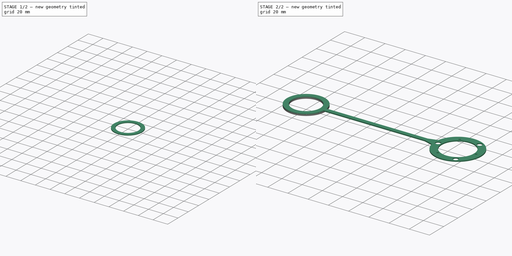
[diagram: build sequence overview — one tinted view per stage of 2, left to right]
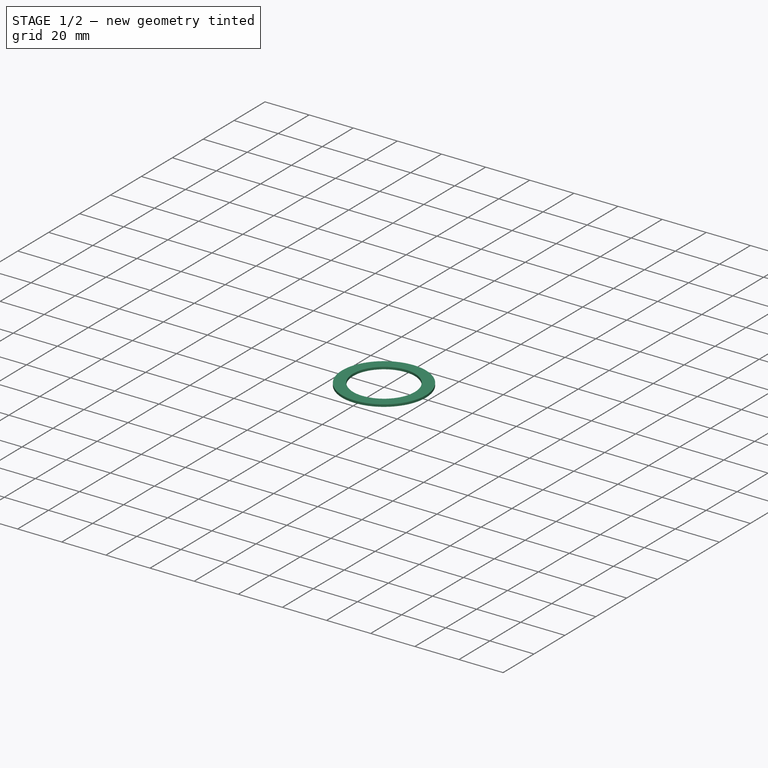
[diagram: stage 1 of 2 — iso view after this stage's code; geometry added in this stage tinted green]
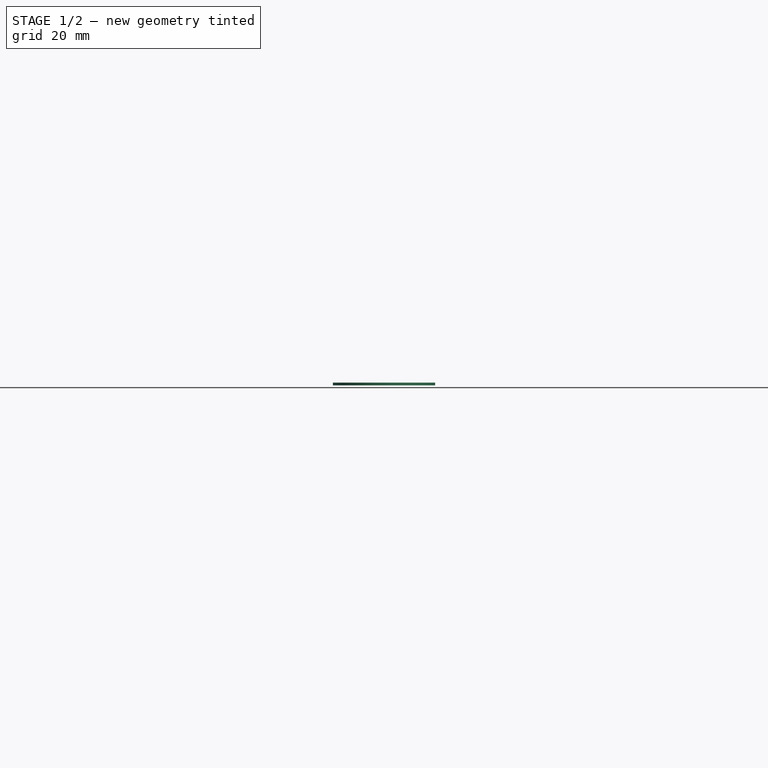
[diagram: stage 1 of 2 — front view after this stage's code; geometry added in this stage tinted green]
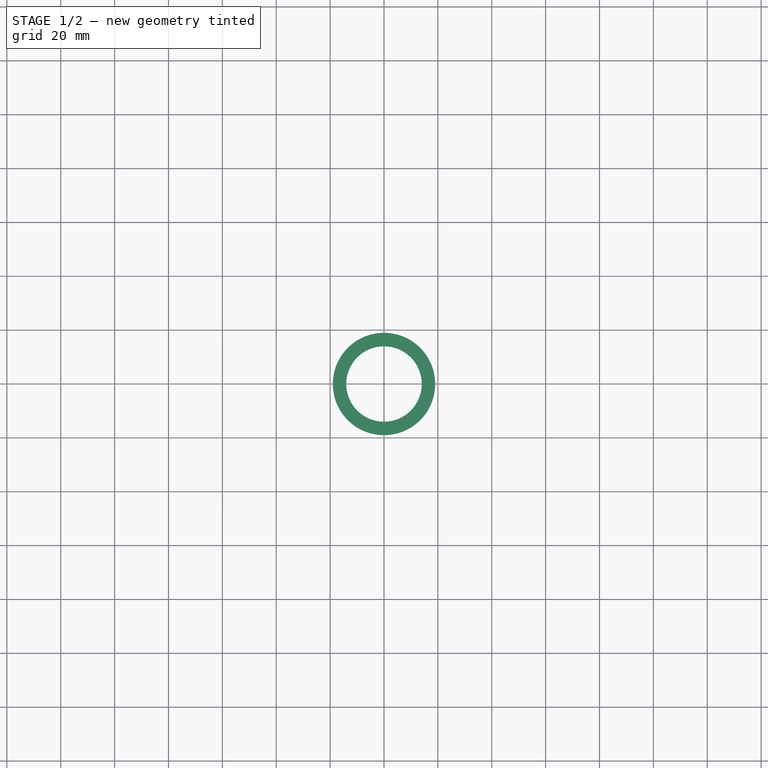
[diagram: stage 1 of 2 — top view after this stage's code; geometry added in this stage tinted green]
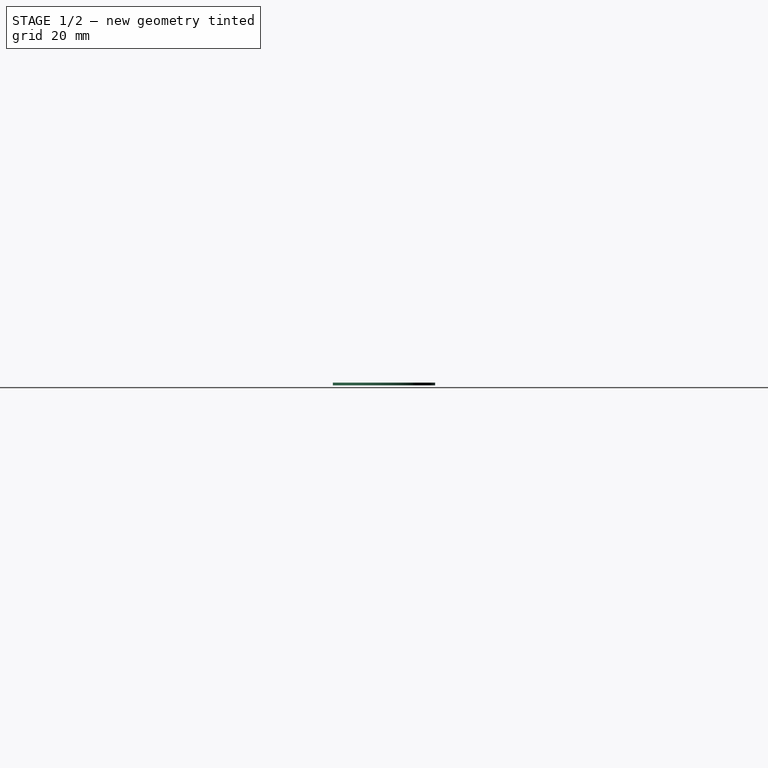
[diagram: stage 1 of 2 — right view after this stage's code; geometry added in this stage tinted green]
FCSTD DOCUMENT  (FreeCAD 0.19R24276 (Git))
Label: Metki_2
License: All rights reserved
LicenseURL: http://en.wikipedia.org/wiki/All_rights_reserved
objects: Sketcher::SketchObject×2, PartDesign::Pad×2, PartDesign::Body×1
note: 7 computed .brp shape members not serialized (recipe doc carries the construction recipe); baked Part::Feature solids carry a one-line shape summary decoded from their .brp

FEATURE [Sketcher::SketchObject] Sketch
  FullyConstrained = true
  MapMode = 5
  Support = -> [XY_Plane]
  sketch-geometry (2):
    g0: Circle CenterX=0 CenterY=0 CenterZ=0 NormalX=0 NormalY=0 NormalZ=1 AngleXU=0 Radius=19
    g1: Circle CenterX=0 CenterY=0 CenterZ=0 NormalX=0 NormalY=0 NormalZ=1 AngleXU=0 Radius=14
  constraints (4):
    c: Coincident(g0,g-1)
    c: Diameter(g0) = 38
    c: Coincident(g1,g0)
    c: Diameter(g1) = 28
FEATURE [PartDesign::Pad] Pad
  Direction = (1,1,1)
  Length = 1
  Length2 = 100
  Profile = -> Sketch
  Type = 0
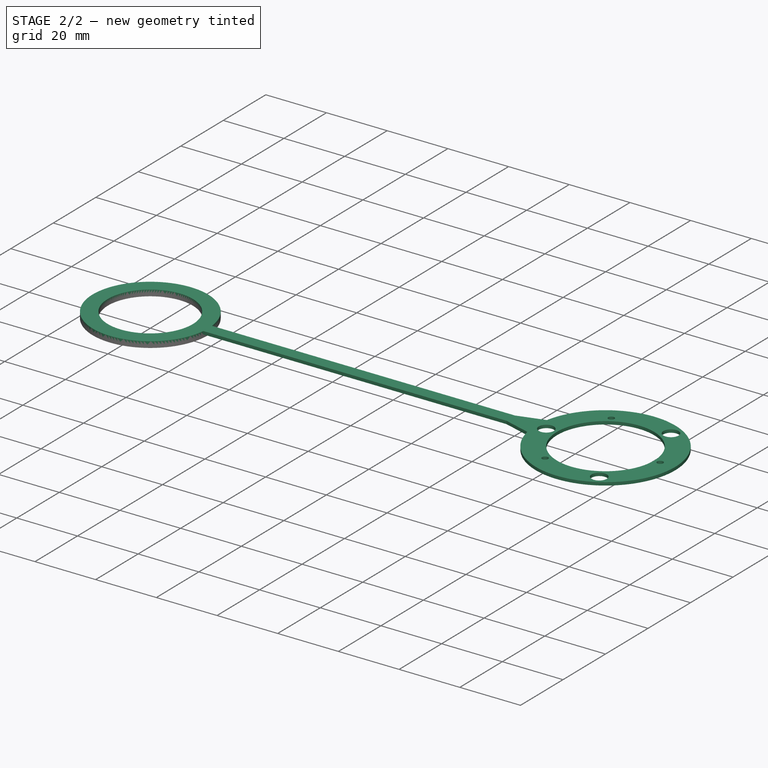
[diagram: stage 2 of 2 — iso view after this stage's code; geometry added in this stage tinted green]
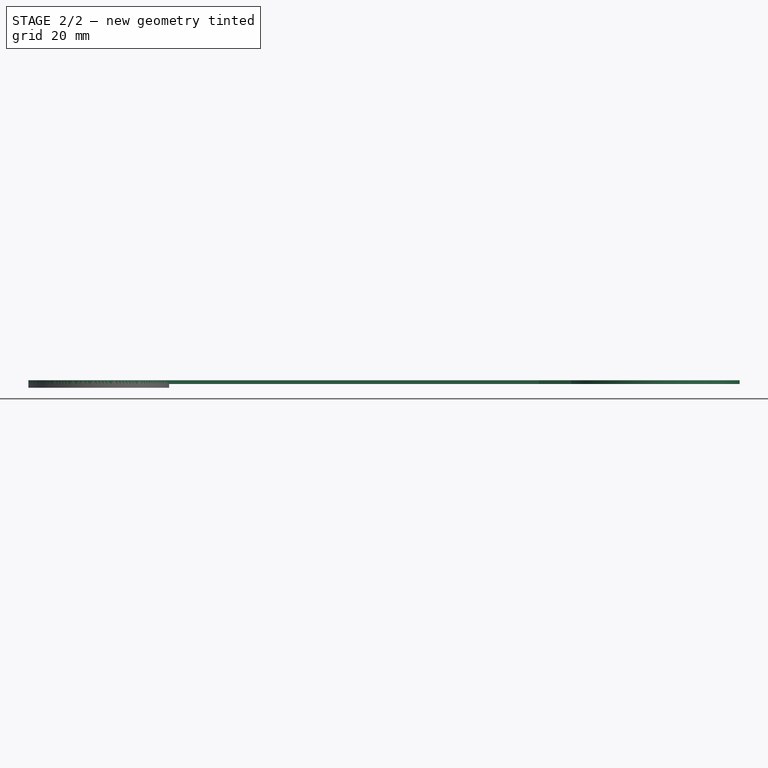
[diagram: stage 2 of 2 — front view after this stage's code; geometry added in this stage tinted green]
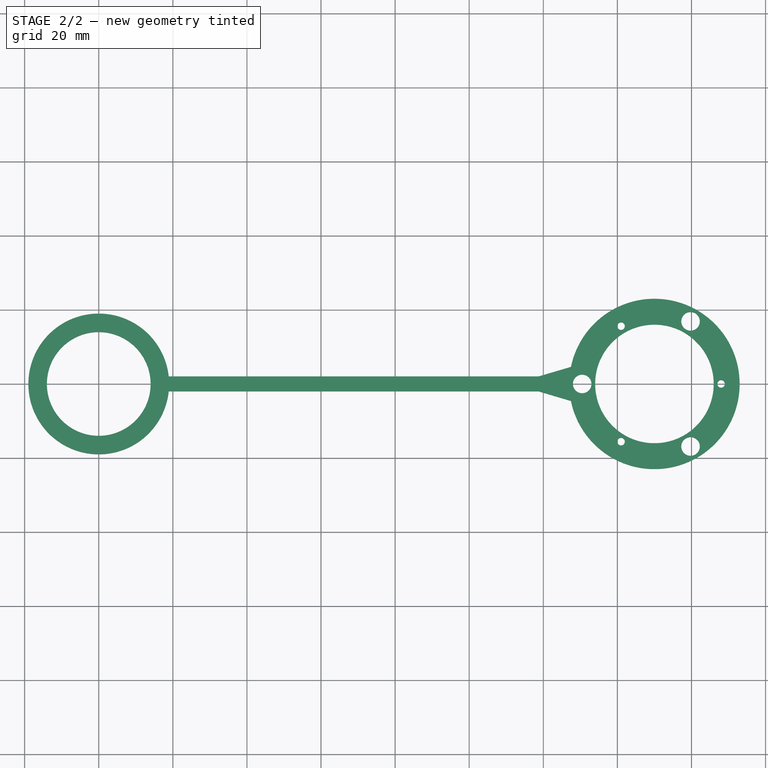
[diagram: stage 2 of 2 — top view after this stage's code; geometry added in this stage tinted green]
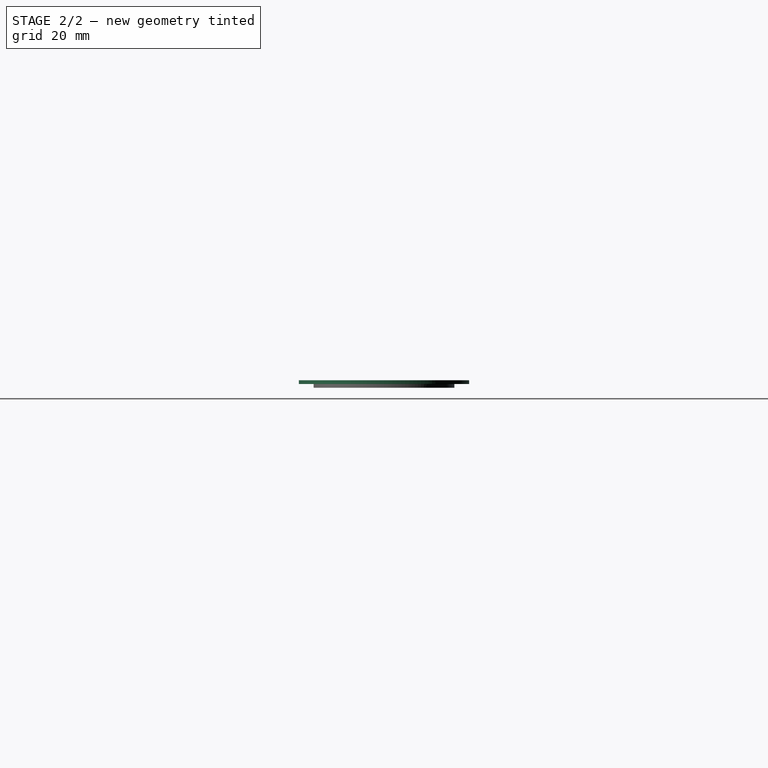
[diagram: stage 2 of 2 — right view after this stage's code; geometry added in this stage tinted green]
FEATURE [Sketcher::SketchObject] Sketch001
  FullyConstrained = false
  MapMode = 5
  Placement = pos=(0,0,1) rot=(0,0,1;0rad)
  Support = -> [Pad]
  sketch-geometry (28):
    g0: ArcOfCircle CenterX=0 CenterY=0 CenterZ=0 NormalX=0 NormalY=0 NormalZ=1 AngleXU=0 Radius=19 StartAngle=0.107906 EndAngle=6.1762
    g1: Circle CenterX=0 CenterY=0 CenterZ=0 NormalX=0 NormalY=0 NormalZ=1 AngleXU=0 Radius=14
    g2: ArcOfCircle CenterX=150 CenterY=0 CenterZ=0 NormalX=0 NormalY=0 NormalZ=1 AngleXU=0 Radius=23 StartAngle=3.34343 EndAngle=9.22295
    g3: LineSegment StartX=18.8895 StartY=2.04623 StartZ=0 EndX=118.782 EndY=2.04623 EndZ=0
    g4: LineSegment StartX=18.8914 StartY=-2.02886 StartZ=0 EndX=118.782 EndY=-2.02886 EndZ=0
    g5: LineSegment StartX=0 StartY=-2 StartZ=0 EndX=0 EndY=2 EndZ=0
    g6: Circle CenterX=141 CenterY=15.5885 CenterZ=0 NormalX=0 NormalY=0 NormalZ=1 AngleXU=0 Radius=1
    g7: Circle CenterX=168 CenterY=0 CenterZ=0 NormalX=0 NormalY=0 NormalZ=1 AngleXU=0 Radius=1
    g8: Circle CenterX=141 CenterY=-15.5885 CenterZ=0 NormalX=0 NormalY=0 NormalZ=1 AngleXU=0 Radius=1
    g9: LineSegment StartX=141 StartY=15.5885 StartZ=0 EndX=141 EndY=-15.5885 EndZ=0
    g10: LineSegment StartX=141 StartY=-15.5885 StartZ=0 EndX=168 EndY=0 EndZ=0
    g11: LineSegment StartX=168 StartY=0 StartZ=0 EndX=141 EndY=15.5885 EndZ=0
    g12: Circle CenterX=150 CenterY=0 CenterZ=0 NormalX=0 NormalY=0 NormalZ=1 AngleXU=0 Radius=18
    g13: LineSegment StartX=150 StartY=0 StartZ=0 EndX=168 EndY=0 EndZ=0
    g14: Circle CenterX=150 CenterY=0 CenterZ=0 NormalX=0 NormalY=0 NormalZ=1 AngleXU=0 Radius=16
    g15: LineSegment StartX=132 StartY=0 StartZ=0 EndX=159 EndY=-15.5885 EndZ=0
    g16: LineSegment StartX=159 StartY=-15.5885 StartZ=0 EndX=159 EndY=15.5885 EndZ=0
    g17: LineSegment StartX=159 StartY=15.5885 StartZ=0 EndX=132 EndY=0 EndZ=0
    g18: Circle CenterX=150 CenterY=0 CenterZ=0 NormalX=0 NormalY=0 NormalZ=1 AngleXU=0 Radius=18
    g19: Circle CenterX=159 CenterY=15.5885 CenterZ=0 NormalX=0 NormalY=0 NormalZ=1 AngleXU=0 Radius=2.5
    g20: Circle CenterX=132 CenterY=0 CenterZ=0 NormalX=0 NormalY=0 NormalZ=1 AngleXU=0 Radius=2.5
    g21: Circle CenterX=159 CenterY=-15.5885 CenterZ=0 NormalX=0 NormalY=0 NormalZ=1 AngleXU=0 Radius=2.5
    g22: LineSegment StartX=150 StartY=0 StartZ=0 EndX=132 EndY=0 EndZ=0
    g23: LineSegment StartX=127.467 StartY=4.61069 StartZ=0 EndX=132 EndY=4.61069 EndZ=0
    g24: LineSegment StartX=132 StartY=4.61069 StartZ=0 EndX=132 EndY=-4.61069 EndZ=0
    g25: LineSegment StartX=132 StartY=-4.61069 StartZ=0 EndX=127.467 EndY=-4.61069 EndZ=0
    g26: LineSegment StartX=127.467 StartY=-4.61069 StartZ=0 EndX=118.782 EndY=-2.02886 EndZ=0
    g27: LineSegment StartX=118.782 StartY=2.04623 StartZ=0 EndX=127.467 EndY=4.61069 EndZ=0
  constraints (63):
    c: Coincident(g0,g-1)
    c: Coincident(g1,g-1)
    c: Diameter(g1) = 28
    c: Diameter(g0) = 38
    c: PointOnObject(g2,g-1)
    c: Horizontal(g3)
    c: Horizontal(g4)
    c: Vertical(g5)
    c: DistanceY(g5,g5) = 4
    c: Coincident(g0,g3)
    c: Coincident(g0,g4)
    c: Coincident(g9,g10)
    c: Coincident(g10,g11)
    c: Coincident(g11,g9)
    c: Equal(g9,g10)
    c: Equal(g9,g11)
    c: PointOnObject(g9,g12)
    c: PointOnObject(g10,g12)
    c: PointOnObject(g11,g12)
    c: Coincident(g12,g2)
    c: Coincident(g13,g2)
    c: Coincident(g13,g10)
    c: Horizontal(g13)
    c: Diameter(g12) = 36
    c: Diameter(g2) = 46
    c: Coincident(g6,g9)
    c: Coincident(g7,g10)
    c: Coincident(g8,g9)
    c: Diameter(g8) = 2
    c: Equal(g8,g6)
    c: Equal(g8,g7)
    c: Coincident(g14,g2)
    c: Diameter(g14) = 32
    c: Coincident(g15,g16)
    c: Coincident(g16,g17)
    c: Coincident(g17,g15)
    c: Equal(g15,g16)
    c: Equal(g15,g17)
    c: PointOnObject(g15,g18)
    c: PointOnObject(g16,g18)
    c: PointOnObject(g17,g18)
    c: Coincident(g18,g2)
    c: PointOnObject(g17,g-1)
    c: Diameter(g18) = 36
    c: Coincident(g19,g16)
    c: Coincident(g20,g15)
    c: Coincident(g21,g15)
    c: Diameter(g20) = 5
    c: Equal(g20,g19)
    c: Equal(g20,g21)
    c: Coincident(g22,g2)
    c: Coincident(g22,g15)
    c: DistanceX(g0,g2) = 150
    c: Coincident(g23,g24)
    c: Coincident(g24,g25)
    c: Horizontal(g23)
    c: Horizontal(g25)
    c: Vertical(g24)
    c: Symmetric(g24,g23,g20)
    c: Coincident(g26,g25)
    c: Coincident(g27,g23)
    c: Coincident(g2,g23)
    c: Coincident(g2,g25)
FEATURE [PartDesign::Pad] Pad001
  BaseFeature = -> Pad
  Direction = (1,1,1)
  Length = 1
  Length2 = 100
  Profile = -> Sketch001
  Type = 0
FEATURE [PartDesign::Body] Body
  Group = -> [Sketch,Pad,Sketch001,Pad001]
  Origin = -> Origin
  Tip = -> Pad001
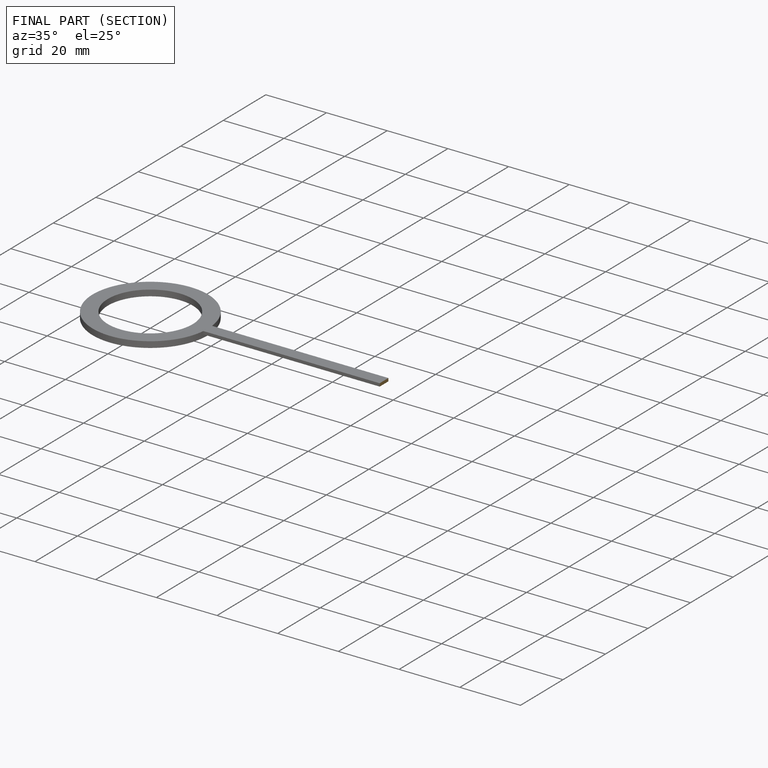
[diagram: finished part — half-section view (interior)]
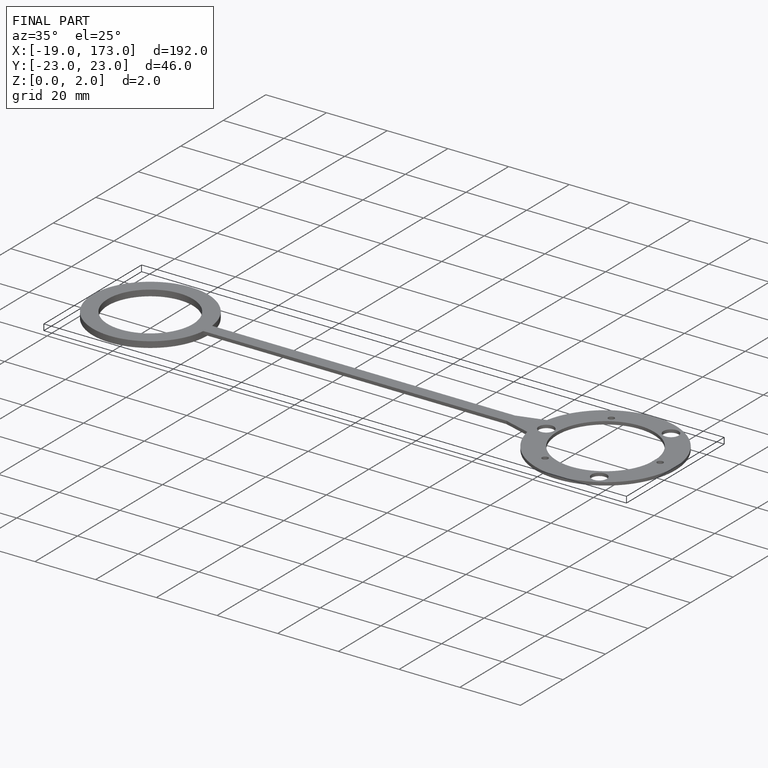
[diagram: finished part — iso view with bounding-box wireframe]
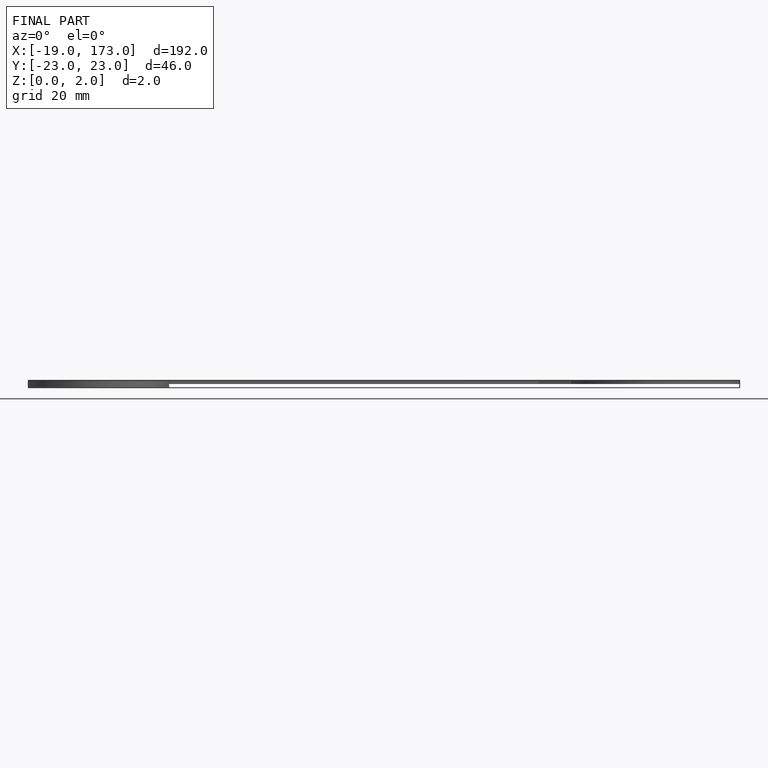
[diagram: finished part — front view with bounding-box wireframe]
